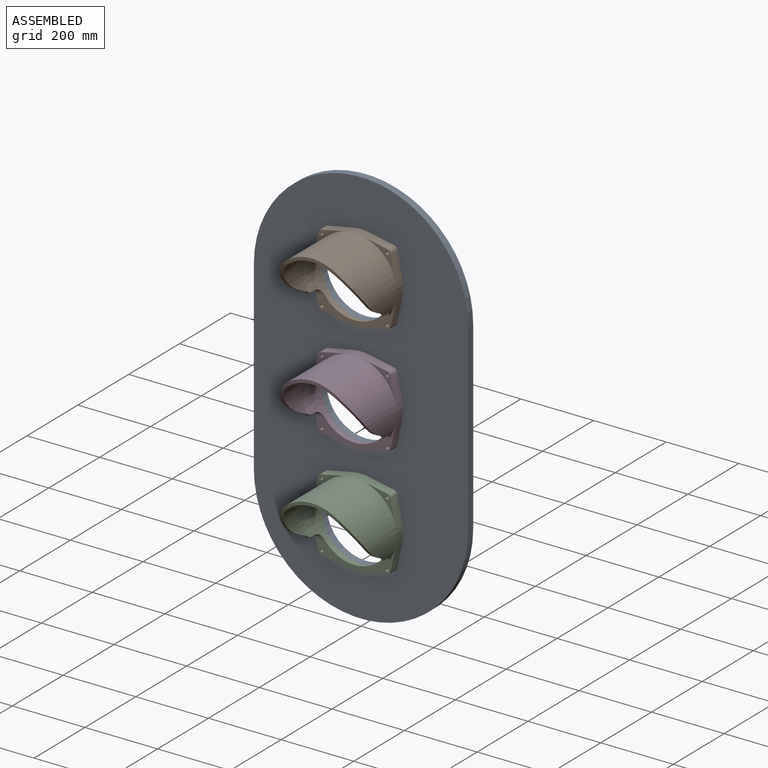
[diagram: assembled view]
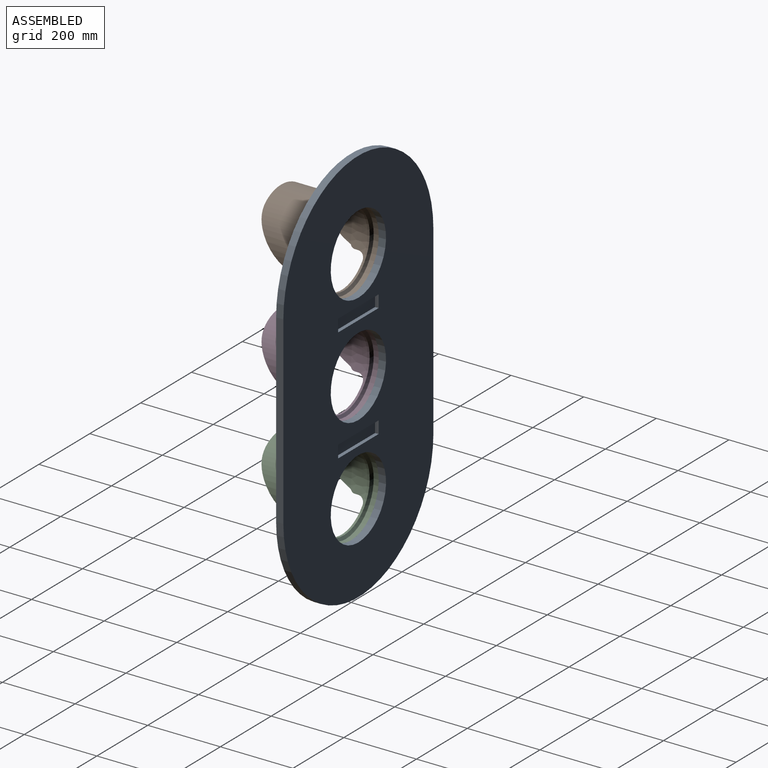
[diagram: assembled view, second angle]
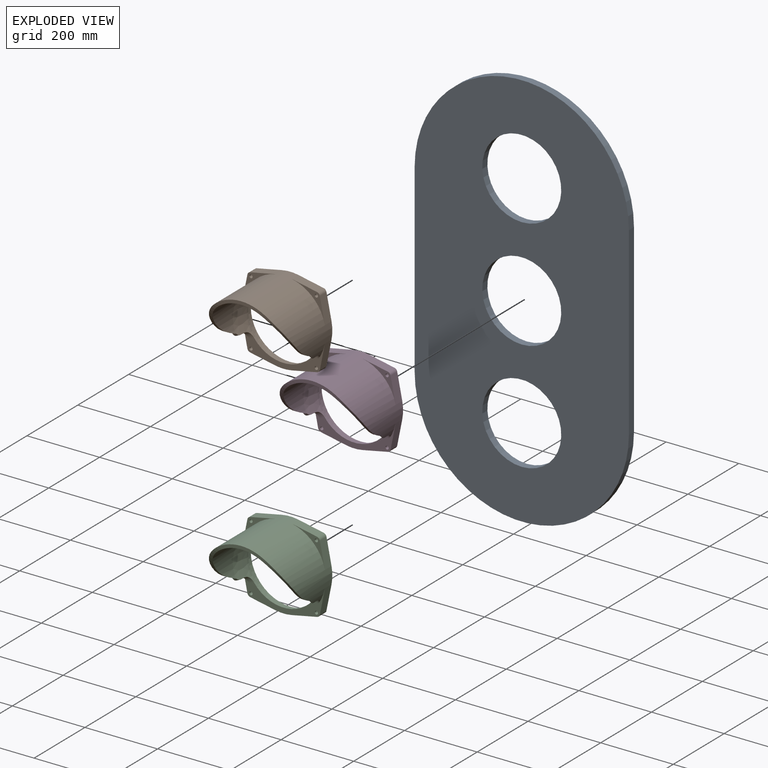
[diagram: exploded view]
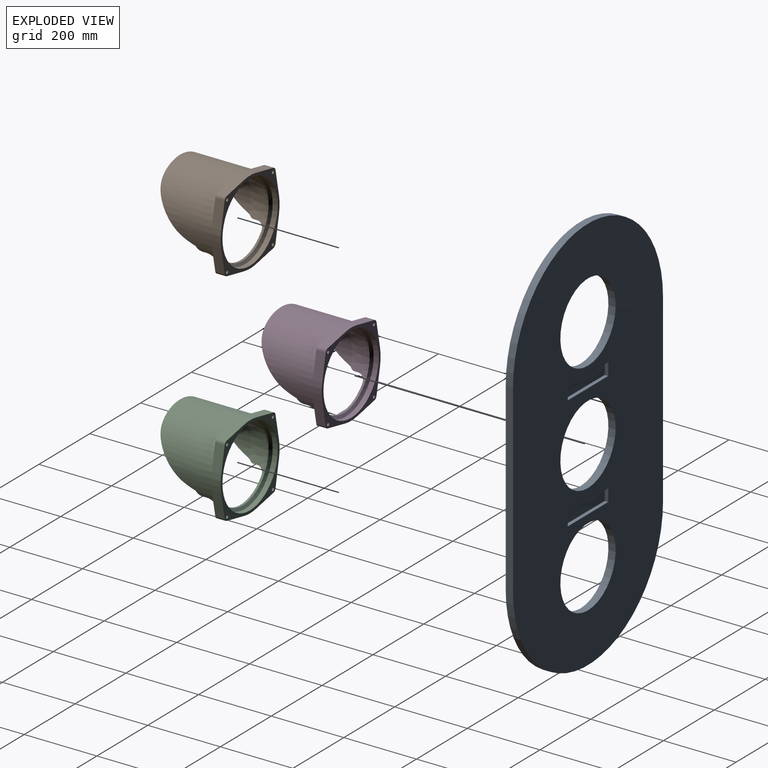
[diagram: exploded view, second angle]
ASSEMBLY  parts=4 mates=3
PART A: 19 faces, bbox 590x20x1099 mm
  f0: plane 1099x590mm, normal (0,-1,0), area 451432.4mm2, adj f1,f2,f3,f4,f5,f6,f7,f9
  f1: plane 509x20mm, normal (1,0,0), area 10180mm2, adj f0,f2,f7,f8
  f2: cylinder r=295mm len=590mm, axis (0,1,0), area 18535.4mm2, adj f0,f1,f3,f8
  f3: plane 509x20mm, normal (-1,0,0), area 10180mm2, adj f0,f2,f7,f8
  f4: cylinder r=108.75mm len=217.5mm, axis (0,1,0), area 13665.9mm2, adj f0,f8
  f5: cylinder r=108.75mm len=217.5mm, axis (0,1,0), area 13665.9mm2, adj f0,f8
  f6: cylinder r=108.75mm len=217.5mm, axis (0,1,0), area 13665.9mm2, adj f0,f8
  f7: cylinder r=295mm len=590mm, axis (0,1,0), area 18535.4mm2, adj f0,f1,f3,f8
  f8: plane 1099x590mm, normal (0,1,0), area 462244.4mm2, adj f1,f2,f3,f4,f5,f6,f7
  f9: plane 34x10mm, normal (1,0,0), area 340mm2, adj f0,f10,f12,f13
  f10: plane 159x10mm, normal (0,0,1), area 1590mm2, adj f0,f9,f11,f13
  f11: plane 34x10mm, normal (-1,0,0), area 340mm2, adj f0,f10,f12,f13
  f12: plane 159x10mm, normal (0,0,-1), area 1590mm2, adj f0,f9,f11,f13
  f13: plane 159x34mm, normal (0,-1,0), area 5406mm2, adj f9,f10,f11,f12
  f14: plane 159x10mm, normal (0,0,-1), area 1590mm2, adj f0,f15,f17,f18
  f15: plane 34x10mm, normal (1,0,0), area 340mm2, adj f0,f14,f16,f18
  f16: plane 159x10mm, normal (0,0,1), area 1590mm2, adj f0,f15,f17,f18
  f17: plane 34x10mm, normal (-1,0,0), area 340mm2, adj f0,f14,f16,f18
  f18: plane 159x34mm, normal (0,-1,0), area 5406mm2, adj f14,f15,f16,f17
PART B: 34 faces, bbox 232x193x232 mm
  f0: extruded ~232x154.46mm, area 4830.5mm2, adj f1,f2,f30,f31
  f1: cylinder r=107mm len=214mm, axis (0,1,0), area 37338.6mm2, adj f0,f29,f30,f31
  f2: cylinder r=116mm len=232mm, axis (0,1,0), area 66384.4mm2, adj f0,f3,f4,f5,f11,f12,f14,f15
  f3: plane 90.81x90.81mm, normal (0,-1,0), area 978.9mm2, adj f2,f15,f16,f17,f21
  f4: plane 90.81x90.81mm, normal (0,-1,0), area 978.9mm2, adj f2,f12,f13,f14,f20
  f5: plane 227.43x93.09mm, normal (0,-1,0), area 4952.2mm2, adj f2,f6,f7,f8,f9,f10,f11,f18
  f6: cylinder r=10mm len=26mm, axis (0,1,0), area 305mm2, adj f5,f7,f18,f19
  f7: plane 69.07x26mm, normal (-0.2,0,-0.98), area 1831.8mm2, adj f5,f6,f8,f19
  f8: cylinder r=116mm len=45.81mm, axis (0,1,0), area 1199mm2, adj f5,f7,f9,f19
  f9: plane 69.07x26mm, normal (0.2,0,-0.98), area 1831.8mm2, adj f5,f8,f10,f19
  f10: cylinder r=10mm len=26mm, axis (0,1,0), area 305mm2, adj f5,f9,f11,f19
  f11: plane 69.07x26mm, normal (0.98,0,-0.2), area 1831.8mm2, adj f2,f5,f10,f19
  f12: plane 69.07x26mm, normal (0.98,0,0.2), area 1831.8mm2, adj f2,f4,f13,f19
  f13: cylinder r=10mm len=26mm, axis (0,1,0), area 305mm2, adj f4,f12,f14,f19
  f14: plane 69.07x26mm, normal (0.2,0,0.98), area 1831.8mm2, adj f2,f4,f13,f19
  f15: plane 69.07x26mm, normal (-0.2,0,0.98), area 1831.8mm2, adj f2,f3,f16,f19
  f16: cylinder r=10mm len=26mm, axis (0,1,0), area 305mm2, adj f3,f15,f17,f19
  f17: plane 69.07x26mm, normal (-0.98,0,0.2), area 1831.8mm2, adj f2,f3,f16,f19
  f18: plane 69.07x26mm, normal (-0.98,0,-0.2), area 1831.8mm2, adj f2,f5,f6,f19
  f19: plane 232x232mm, normal (0,1,0), area 9034.5mm2, adj f2,f6,f7,f8,f9,f10,f11,f12
  f20: cylinder r=4.5mm len=26mm, axis (0,1,0), area 735.1mm2, adj f4,f19
  f21: cylinder r=4.5mm len=26mm, axis (0,1,0), area 735.1mm2, adj f3,f19
  f22: cylinder r=4.5mm len=26mm, axis (0,1,0), area 735.1mm2, adj f5,f19
  f23: cylinder r=4.5mm len=26mm, axis (0,1,0), area 735.1mm2, adj f5,f19
  f24: cylinder r=108.75mm len=217.5mm, axis (0,1,0), area 9566.1mm2, adj f19,f25
  f25: cone r=108.75mm half-angle=50.4deg, axis (0,1,0), area 6216mm2, adj f24,f26
  f26: cylinder r=101.5mm len=203mm, axis (0,1,0), area 3826.5mm2, adj f5,f25,f29
  f27: plane 11.02x11mm, normal (0.42,0,-0.91), area 126.7mm2, adj f2,f29,f31,f33
  f28: plane 11.02x11mm, normal (-0.42,0,-0.91), area 126.7mm2, adj f2,f29,f30,f32
  f29: cone r=107mm half-angle=6.7deg, axis (0,-1,0), area 19865.4mm2, adj f1,f26,f27,f28,f30,f31,f32,f33
  f30: cylinder r=16mm len=19.1mm, axis (-0.91,0,0.42), area 185.1mm2, adj f0,f1,f2,f28,f29
  f31: cylinder r=16mm len=19.1mm, axis (-0.91,0,-0.42), area 185.1mm2, adj f0,f1,f2,f27,f29
  f32: cylinder r=20mm len=25.1mm, axis (-0.91,0,0.42), area 430.6mm2, adj f2,f5,f28,f29
  f33: cylinder r=20mm len=25.1mm, axis (-0.91,0,-0.42), area 430.6mm2, adj f2,f5,f27,f29
PART C: same geometry as B
PART D: same geometry as B
PLACE A rot(axis=(0,0,1),180deg) t=(0,0,0)mm
PLACE B t=(0,0,304.5)mm
PLACE C t=(0,0,-304.5)mm
PLACE D at identity
MATE fastened A.f5 <-> D.f24  axis (0,-1,0) through (0,0,0)mm
MATE fastened C.f24 <-> A.f6  axis (0,1,0) through (0,0,-304.5)mm
MATE fastened A.f4 <-> B.f24  axis (0,-1,0) through (0,0,304.5)mm
